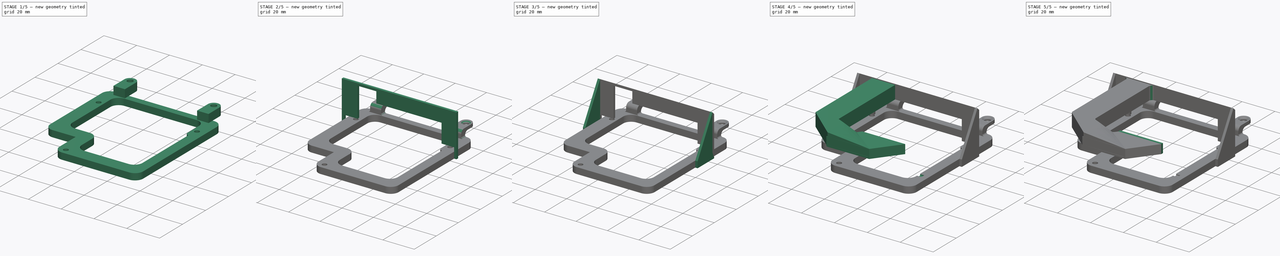
[diagram: build sequence overview — one tinted view per stage of 5, left to right]
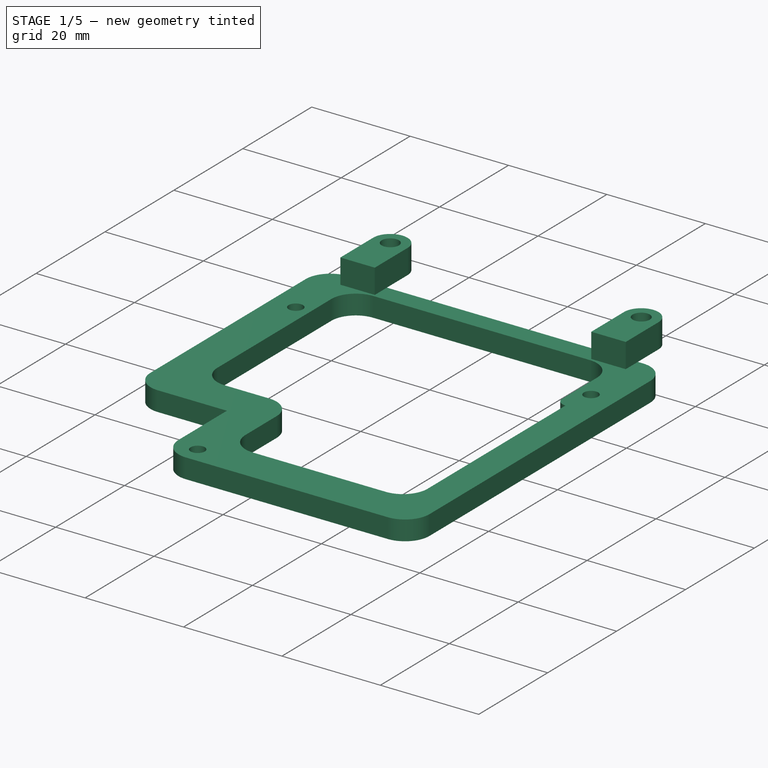
[diagram: stage 1 of 5 — iso view after this stage's code; geometry added in this stage tinted green]
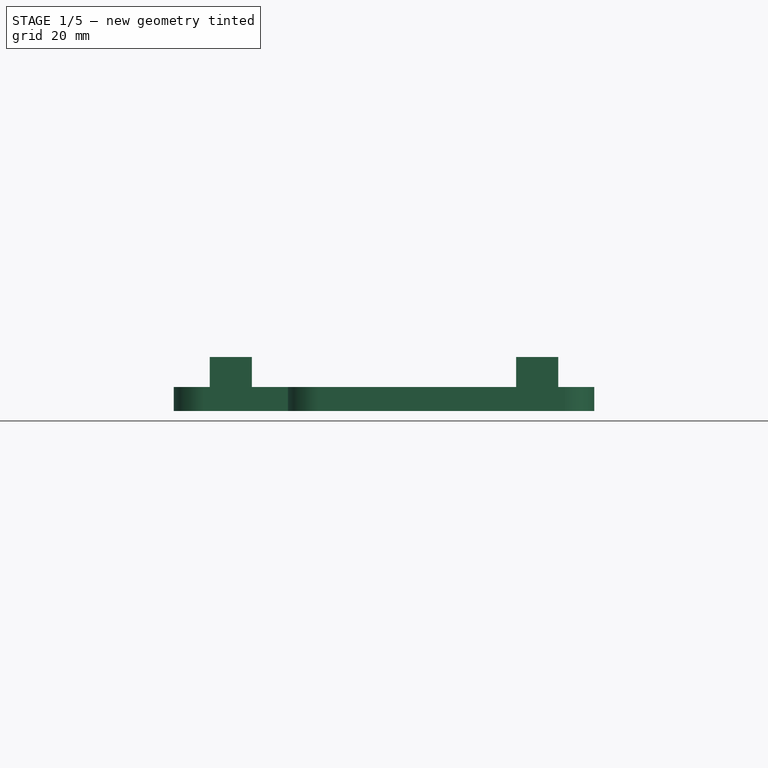
[diagram: stage 1 of 5 — front view after this stage's code; geometry added in this stage tinted green]
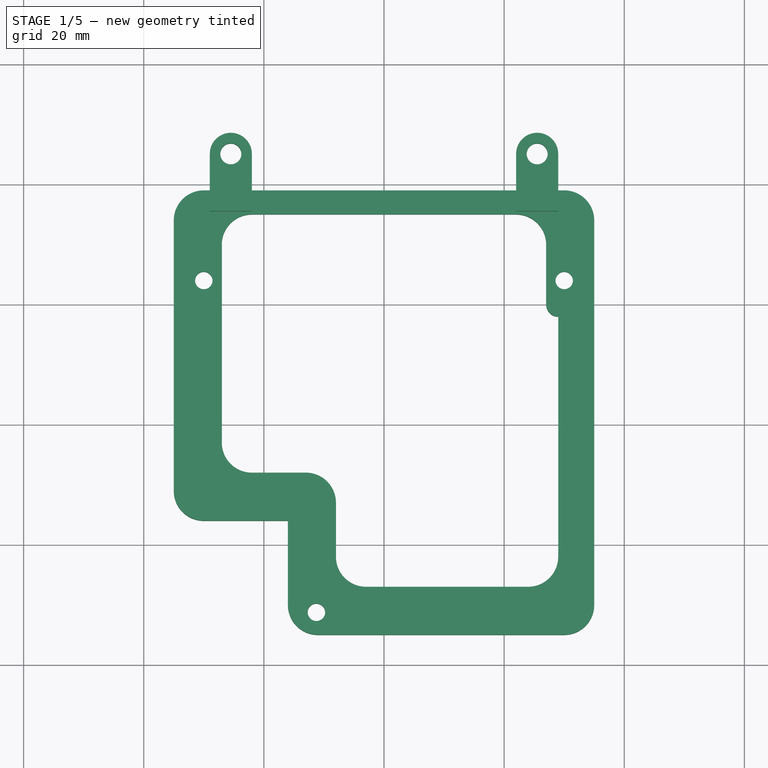
[diagram: stage 1 of 5 — top view after this stage's code; geometry added in this stage tinted green]
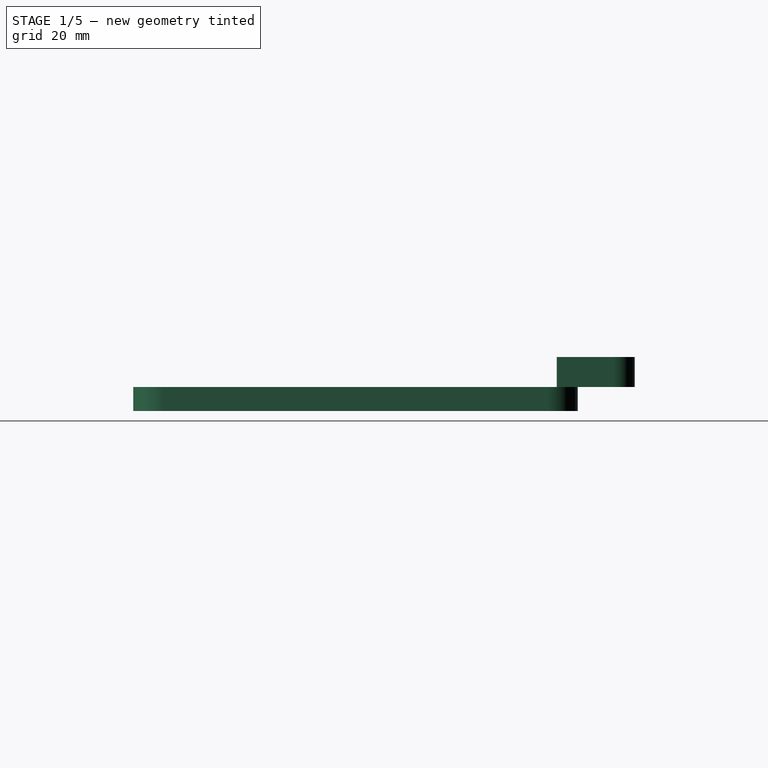
[diagram: stage 1 of 5 — right view after this stage's code; geometry added in this stage tinted green]
FCSTD DOCUMENT  (FreeCAD 0.20R29603 (Git))
Label: Encaixe (Nova PM sensor)
License: All rights reserved
LicenseURL: http://en.wikipedia.org/wiki/All_rights_reserved
objects: Sketcher::SketchObject×15, PartDesign::Pad×8, PartDesign::Fillet×6, PartDesign::Pocket×4, PartDesign::Plane×4, PartDesign::Chamfer×3, PartDesign::AdditiveLoft×1, PartDesign::Body×1
note: 64 computed .brp shape members not serialized (recipe doc carries the construction recipe); baked Part::Feature solids carry a one-line shape summary decoded from their .brp

FEATURE [Sketcher::SketchObject] Sketch
  FullyConstrained = true
  MapMode = 5
  Support = -> [XY_Plane]
  sketch-geometry (24):
    g0: LineSegment StartX=35 StartY=-35 StartZ=0 EndX=35 EndY=35 EndZ=0
    g1: LineSegment StartX=35 StartY=35 StartZ=0 EndX=-35 EndY=35 EndZ=0
    g2: LineSegment StartX=-35 StartY=35 StartZ=0 EndX=-35 EndY=-35 EndZ=0
    g3: LineSegment StartX=-35 StartY=-35 StartZ=0 EndX=35 EndY=-35 EndZ=0
    g4: GeomPoint X=0 Y=0 Z=0
    g5: LineSegment StartX=-30 StartY=24 StartZ=0 EndX=30 EndY=24 EndZ=0
    g6: Circle CenterX=-30 CenterY=24 CenterZ=0 NormalX=0 NormalY=0 NormalZ=1 AngleXU=0 Radius=1.45
    g7: Circle CenterX=30 CenterY=24 CenterZ=0 NormalX=0 NormalY=0 NormalZ=1 AngleXU=0 Radius=1.45
    g8: Circle CenterX=-11.25 CenterY=-31.25 CenterZ=0 NormalX=0 NormalY=0 NormalZ=1 AngleXU=0 Radius=1.45
    g9: GeomPoint X=0 Y=24 Z=0
    g10: LineSegment StartX=-27 StartY=35 StartZ=0 EndX=-27 EndY=-8 EndZ=0
    g11: LineSegment StartX=-27 StartY=-8 StartZ=0 EndX=-8 EndY=-8 EndZ=0
    g12: LineSegment StartX=-8 StartY=-8 StartZ=0 EndX=-8 EndY=-27 EndZ=0
    g13: LineSegment StartX=-8 StartY=-27 StartZ=0 EndX=29 EndY=-27 EndZ=0
    g14: LineSegment StartX=29 StartY=-27 StartZ=0 EndX=29 EndY=18 EndZ=0
    g15: LineSegment StartX=29 StartY=18 StartZ=0 EndX=27 EndY=18 EndZ=0
    g16: LineSegment StartX=27 StartY=18 StartZ=0 EndX=27 EndY=35 EndZ=0
    g17: LineSegment StartX=27 StartY=35 StartZ=0 EndX=-27 EndY=35 EndZ=0
    g18: LineSegment StartX=-35 StartY=39 StartZ=0 EndX=-35 EndY=-16 EndZ=0
    g19: LineSegment StartX=-35 StartY=-16 StartZ=0 EndX=-16 EndY=-16 EndZ=0
    g20: LineSegment StartX=-16 StartY=-16 StartZ=0 EndX=-16 EndY=-35 EndZ=0
    g21: LineSegment StartX=-16 StartY=-35 StartZ=0 EndX=35 EndY=-35 EndZ=0
    g22: LineSegment StartX=35 StartY=-35 StartZ=0 EndX=35 EndY=39 EndZ=0
    g23: LineSegment StartX=35 StartY=39 StartZ=0 EndX=-35 EndY=39 EndZ=0
  constraints (65):
    c: Coincident(g0,g1)
    c: Coincident(g1,g2)
    c: Coincident(g2,g3)
    c: Coincident(g3,g0)
    c: Horizontal(g1)
    c: Horizontal(g3)
    c: Vertical(g0)
    c: Vertical(g2)
    c: Symmetric(g1,g0,g4)
    c: Coincident(g4,g-1)
    c: Equal(g1,g2)
    c: DistanceX(g1,g1) = 70
    c: Horizontal(g5)
    c: DistanceX(g5,g5) = 60
    c: Coincident(g6,g5)
    c: Coincident(g7,g5)
    c: Equal(g7,g6)
    c: Diameter(g7) = 2.9
    c: DistanceY(g2,g8) = 3.75
    c: Equal(g8,g6)
    c: DistanceX(g2,g8) = 23.75
    c: PointOnObject(g9,g-2)
    c: Symmetric(g6,g7,g9)
    c: DistanceY(g7,g0) = 11
    c: Vertical(g10)
    c: Coincident(g10,g11)
    c: Horizontal(g11)
    c: Coincident(g11,g12)
    c: Vertical(g12)
    c: Coincident(g12,g13)
    c: Coincident(g14,g13)
    c: Vertical(g14)
    c: Horizontal(g13)
    c: Coincident(g14,g15)
    c: Horizontal(g15)
    c: Coincident(g15,g16)
    c: Vertical(g16)
    c: PointOnObject(g16,g1)
    c: Coincident(g16,g17)
    c: PointOnObject(g17,g1)
    c: PointOnObject(g18,g2)
    c: Vertical(g18)
    c: Coincident(g18,g19)
    c: Horizontal(g19)
    c: Coincident(g19,g20)
    c: PointOnObject(g20,g3)
    c: Vertical(g20)
    c: Coincident(g20,g21)
    c: Coincident(g21,g0)
    c: Coincident(g21,g22)
    c: Vertical(g22)
    c: Coincident(g22,g23)
    c: Horizontal(g23)
    c: DistanceX(g2,g20) = 19
    c: Equal(g19,g20)
    c: DistanceX(g18,g10) = 8
    c: Coincident(g10,g17)
    c: DistanceY(g19,g11) = 8
    c: DistanceX(g20,g12) = 8
    c: DistanceY(g21,g13) = 8
    c: DistanceX(g13,g21) = 6
    c: DistanceX(g15,g15) = 2
    c: DistanceY(g21,g14) = 53
    c: DistanceY(g0,g22) = 4
    c: Coincident(g23,g18)
FEATURE [PartDesign::Pad] Pad
  Direction = (0,0,1)
  Length = 4
  Length2 = 10
  Profile = -> Sketch
  ReferenceAxis = -> Sketch [N_Axis]
  Type = 0
FEATURE [PartDesign::Fillet] Fillet
  Base = -> Pad [Edge35]
  BaseFeature = -> Pad
  Radius = 1.99
  SupportTransform = false
  UseAllEdges = false
FEATURE [PartDesign::Fillet] Fillet001
  Base = -> Fillet [Edge44,Edge49,Edge47,Edge46,Edge43,Edge45,Edge42,Edge50,Edge24,Edge51,Edge41]
  BaseFeature = -> Fillet
  Radius = 5
  SupportTransform = false
  UseAllEdges = false
FEATURE [Sketcher::SketchObject] Sketch001
  ExternalGeometry = -> [Fillet001]
  FullyConstrained = true
  MapMode = 5
  Placement = pos=(0,0,4) rot=(0,0,1;0rad)
  Support = -> [Fillet001]
  sketch-geometry (13):
    g0: Circle CenterX=-25.5 CenterY=45 CenterZ=0 NormalX=0 NormalY=0 NormalZ=1 AngleXU=0 Radius=1.75
    g1: ArcOfCircle CenterX=-25.5 CenterY=45 CenterZ=0 NormalX=0 NormalY=0 NormalZ=1 AngleXU=0 Radius=3.5 StartAngle=-9e-16 EndAngle=3.14159
    g2: LineSegment StartX=-29 StartY=45 StartZ=0 EndX=-29 EndY=35.5 EndZ=0
    g3: LineSegment StartX=-29 StartY=35.5 StartZ=0 EndX=-22 EndY=35.5 EndZ=0
    g4: LineSegment StartX=-22 StartY=35.5 StartZ=0 EndX=-22 EndY=45 EndZ=0
    g5: LineSegment StartX=-29 StartY=45 StartZ=0 EndX=-22 EndY=45 EndZ=0
    g6: LineSegment StartX=22 StartY=45 StartZ=0 EndX=29 EndY=45 EndZ=0
    g7: LineSegment StartX=29 StartY=45 StartZ=0 EndX=29 EndY=35.5 EndZ=0
    g8: LineSegment StartX=29 StartY=35.5 StartZ=0 EndX=22 EndY=35.5 EndZ=0
    g9: LineSegment StartX=22 StartY=35.5 StartZ=0 EndX=22 EndY=45 EndZ=0
    g10: Circle CenterX=25.5 CenterY=45 CenterZ=0 NormalX=0 NormalY=0 NormalZ=1 AngleXU=0 Radius=1.75
    g11: ArcOfCircle CenterX=25.5 CenterY=45 CenterZ=0 NormalX=0 NormalY=0 NormalZ=1 AngleXU=0 Radius=3.5 StartAngle=4.7e-15 EndAngle=3.14159
    g12: LineSegment StartX=-22 StartY=35.5 StartZ=0 EndX=22 EndY=35.5 EndZ=0
  constraints (35):
    c: Coincident(g1,g0)
    c: Tangent(g1,g2) = -1.5708
    c: Coincident(g2,g3)
    c: Horizontal(g3)
    c: Coincident(g3,g4)
    c: Coincident(g4,g1)
    c: Vertical(g4)
    c: Vertical(g2)
    c: Coincident(g5,g1)
    c: Coincident(g5,g1)
    c: Horizontal(g5)
    c: DistanceX(g3,g3) = 7
    c: DistanceX(g-3,g2) = 6
    c: DistanceY(g-5,g1) = 6
    c: Coincident(g6,g7)
    c: Coincident(g7,g8)
    c: Coincident(g8,g9)
    c: Coincident(g9,g6)
    c: Horizontal(g6)
    c: Horizontal(g8)
    c: Vertical(g7)
    c: Vertical(g9)
    c: PointOnObject(g10,g6)
    c: Coincident(g11,g10)
    c: Coincident(g11,g6)
    c: Coincident(g11,g6)
    c: Equal(g8,g3)
    c: Equal(g10,g0)
    c: Diameter(g10) = 3.5
    c: DistanceX(g7,g-4) = 6
    c: DistanceY(g-5,g6) = 6
    c: Coincident(g12,g3)
    c: Coincident(g12,g8)
    c: Horizontal(g12)
    c: DistanceY(g-6,g3) = 0.5
FEATURE [PartDesign::Pad] Pad001
  BaseFeature = -> Fillet001
  Direction = (0,0,1)
  Length = 5
  Length2 = 10
  Profile = -> Sketch001
  ReferenceAxis = -> Sketch001 [N_Axis]
  Type = 0
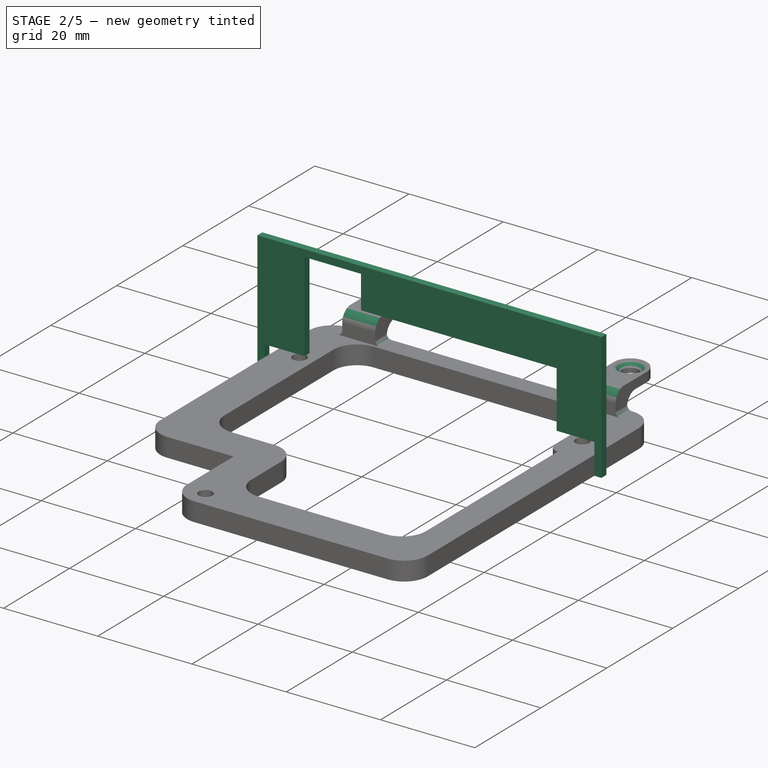
[diagram: stage 2 of 5 — iso view after this stage's code; geometry added in this stage tinted green]
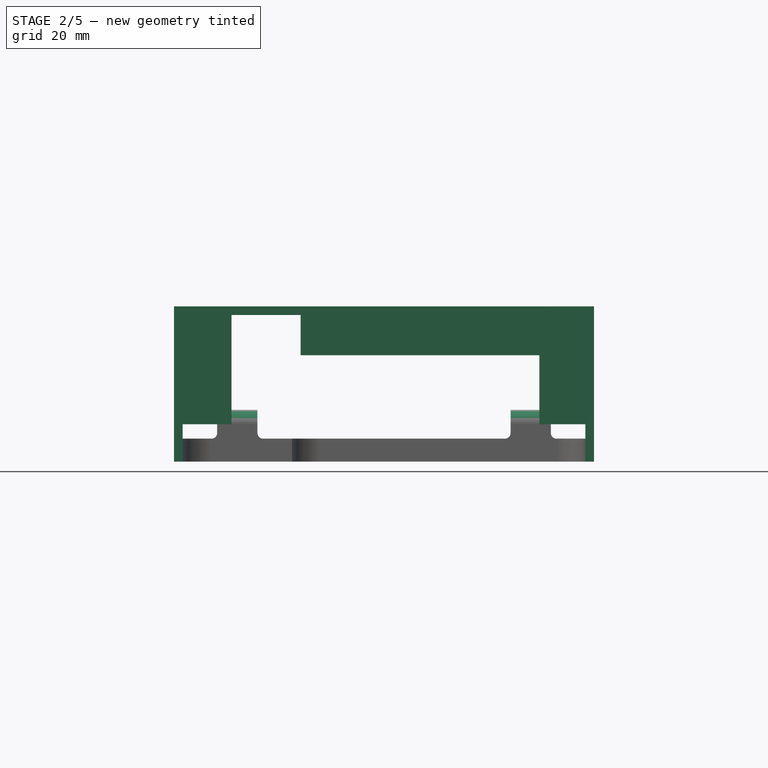
[diagram: stage 2 of 5 — front view after this stage's code; geometry added in this stage tinted green]
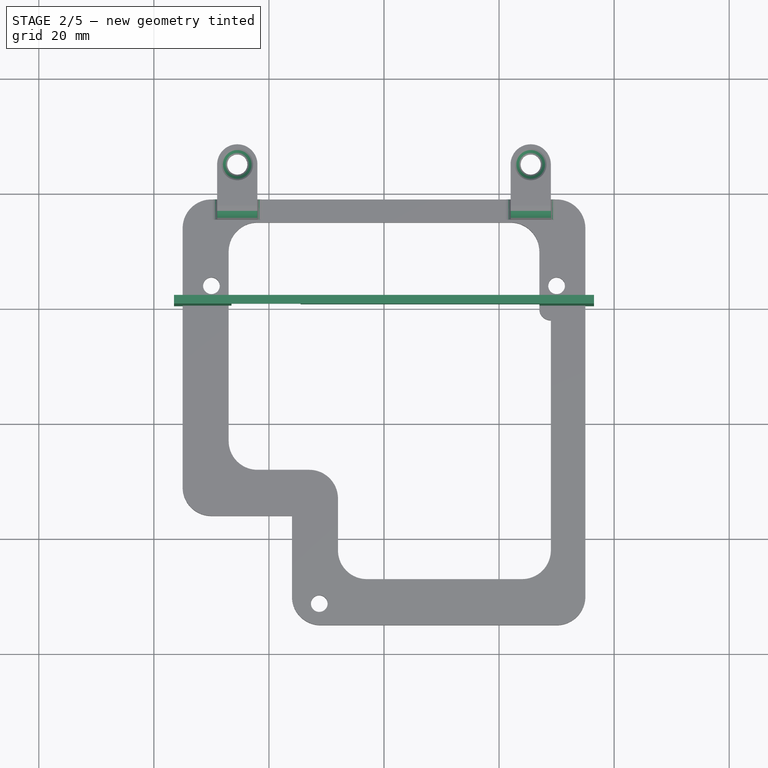
[diagram: stage 2 of 5 — top view after this stage's code; geometry added in this stage tinted green]
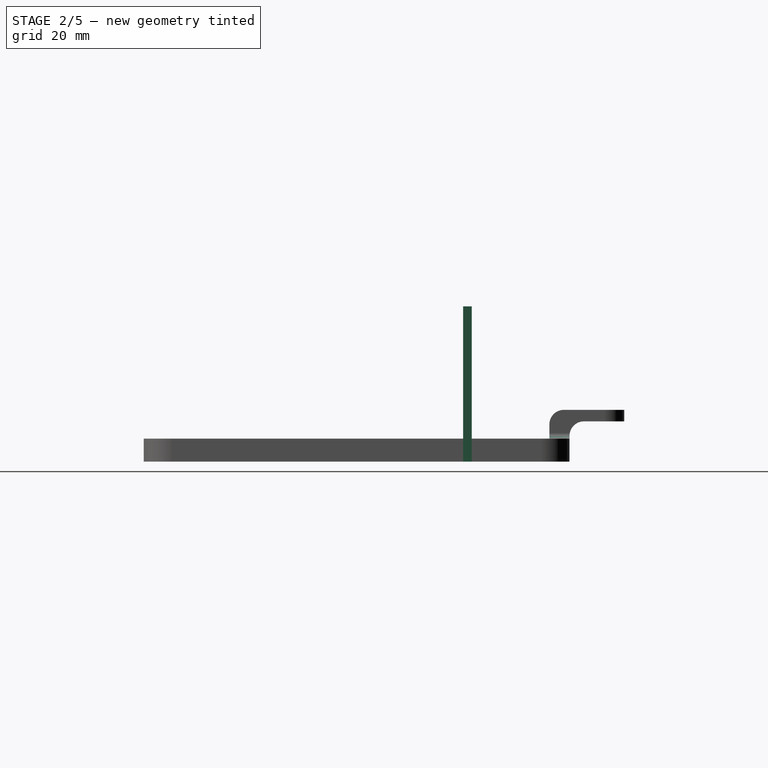
[diagram: stage 2 of 5 — right view after this stage's code; geometry added in this stage tinted green]
FEATURE [Sketcher::SketchObject] Sketch002
  ExternalGeometry = -> [Pad001]
  FullyConstrained = true
  MapMode = 5
  Placement = pos=(22,0,0) rot=(0.57735,-0.57735,-0.57735;2.0944rad)
  Support = -> [Pad001]
  sketch-geometry (4):
    g0: LineSegment StartX=-39 StartY=4 StartZ=0 EndX=-49 EndY=4 EndZ=0
    g1: LineSegment StartX=-49 StartY=4 StartZ=0 EndX=-49 EndY=7 EndZ=0
    g2: LineSegment StartX=-49 StartY=7 StartZ=0 EndX=-39 EndY=7 EndZ=0
    g3: LineSegment StartX=-39 StartY=7 StartZ=0 EndX=-39 EndY=4 EndZ=0
  constraints (11):
    c: Coincident(g0,g1)
    c: Coincident(g1,g2)
    c: Coincident(g2,g3)
    c: Coincident(g3,g0)
    c: Horizontal(g0)
    c: Horizontal(g2)
    c: Vertical(g1)
    c: Vertical(g3)
    c: Coincident(g0,g-5)
    c: DistanceX(g0,g0) = 10
    c: DistanceY(g3,g3) = 3
FEATURE [PartDesign::Pocket] Pocket
  BaseFeature = -> Pad001
  Direction = (1,0,0)
  Length = 10
  Length2 = 60
  Profile = -> Sketch002
  ReferenceAxis = -> Sketch002 [N_Axis]
  Type = 4
FEATURE [PartDesign::Fillet] Fillet002
  Base = -> Pocket [Edge100,Edge118,Edge109,Edge103]
  BaseFeature = -> Pocket
  Radius = 2.5
  SupportTransform = false
  UseAllEdges = false
FEATURE [PartDesign::Fillet] Fillet003
  Base = -> Fillet002 [Edge28,Edge6,Edge24,Edge30]
  BaseFeature = -> Fillet002
  Radius = 1
  SupportTransform = false
  UseAllEdges = false
FEATURE [PartDesign::Chamfer] Chamfer
  Angle = 45
  Base = -> Fillet003 [Edge38,Edge157]
  BaseFeature = -> Fillet003
  ChamferType = 0
  FlipDirection = false
  Size = 1
  Size2 = 1
  SupportTransform = false
  UseAllEdges = false
FEATURE [Sketcher::SketchObject] Sketch003
  AttachmentOffset = pos=(0,0,-18.5) rot=(0,0,1;0rad)
  ExternalGeometry = -> [Chamfer]
  FullyConstrained = true
  MapMode = 5
  Placement = pos=(0,20.5,4.1e-15) rot=(0,0.707107,0.707107;3.14159rad)
  Support = -> [Chamfer]
  sketch-geometry (14):
    g0: LineSegment StartX=-36.5 StartY=0 StartZ=0 EndX=-35 EndY=0 EndZ=0
    g1: LineSegment StartX=-35 StartY=0 StartZ=0 EndX=-35 EndY=6.5 EndZ=0
    g2: LineSegment StartX=-35 StartY=6.5 StartZ=0 EndX=-27 EndY=6.5 EndZ=0
    g3: LineSegment StartX=-27 StartY=6.5 StartZ=0 EndX=-27 EndY=18.5 EndZ=0
    g4: LineSegment StartX=-27 StartY=18.5 StartZ=0 EndX=14.5 EndY=18.5 EndZ=0
    g5: LineSegment StartX=14.5 StartY=18.5 StartZ=0 EndX=14.5 EndY=25.5 EndZ=0
    g6: LineSegment StartX=14.5 StartY=25.5 StartZ=0 EndX=26.5 EndY=25.5 EndZ=0
    g7: LineSegment StartX=26.5 StartY=25.5 StartZ=0 EndX=26.5 EndY=6.5 EndZ=0
    g8: LineSegment StartX=26.5 StartY=6.5 StartZ=0 EndX=35 EndY=6.5 EndZ=0
    g9: LineSegment StartX=35 StartY=6.5 StartZ=0 EndX=35 EndY=-9e-16 EndZ=0
    g10: LineSegment StartX=35 StartY=-9e-16 StartZ=0 EndX=36.5 EndY=-9e-16 EndZ=0
    g11: LineSegment StartX=36.5 StartY=-9e-16 StartZ=0 EndX=36.5 EndY=27 EndZ=0
    g12: LineSegment StartX=36.5 StartY=27 StartZ=0 EndX=-36.5 EndY=27 EndZ=0
    g13: LineSegment StartX=-36.5 StartY=27 StartZ=0 EndX=-36.5 EndY=0 EndZ=0
  constraints (40):
    c: Horizontal(g0)
    c: Coincident(g0,g1)
    c: Coincident(g1,g2)
    c: Horizontal(g2)
    c: Coincident(g2,g3)
    c: Coincident(g3,g4)
    c: Horizontal(g4)
    c: Coincident(g4,g5)
    c: Vertical(g5)
    c: Coincident(g5,g6)
    c: Horizontal(g6)
    c: Coincident(g6,g7)
    c: Vertical(g7)
    c: Coincident(g7,g8)
    c: Horizontal(g8)
    c: Coincident(g8,g9)
    c: Vertical(g9)
    c: Coincident(g9,g10)
    c: Coincident(g10,g11)
    c: Vertical(g11)
    c: Coincident(g11,g12)
    c: Horizontal(g12)
    c: Coincident(g12,g13)
    c: Coincident(g13,g0)
    c: Vertical(g3)
    c: Vertical(g1)
    c: Vertical(g13)
    c: Horizontal(g10)
    c: Equal(g10,g0)
    c: DistanceX(g12,g12) = 73
    c: DistanceX(g6,g6) = 12
    c: DistanceY(g5,g5) = 7
    c: DistanceX(g4,g4) = 41.5
    c: DistanceY(g13,g13) = 27
    c: Equal(g9,g1)
    c: DistanceY(g3,g3) = 12
    c: DistanceX(g2,g2) = 8
    c: Coincident(g9,g-4)
    c: Coincident(g0,g-3)
    c: DistanceY(g-4,g8) = 2.5
FEATURE [PartDesign::Pad] Pad002
  BaseFeature = -> Chamfer
  Direction = (0,1,-2e-16)
  Length = 1.5
  Length2 = 10
  Profile = -> Sketch003
  ReferenceAxis = -> Sketch003 [N_Axis]
  Refine = true
  Type = 0
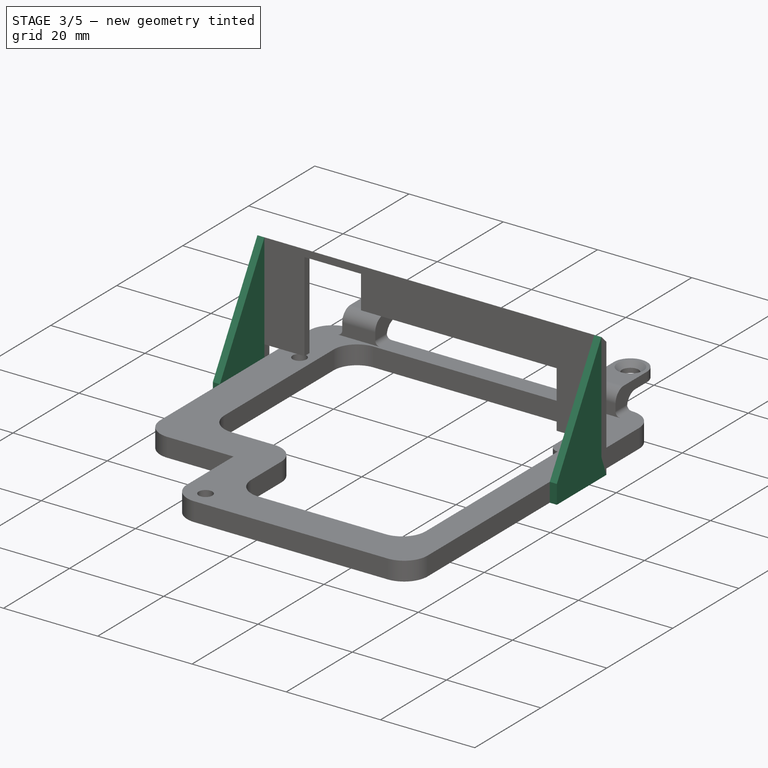
[diagram: stage 3 of 5 — iso view after this stage's code; geometry added in this stage tinted green]
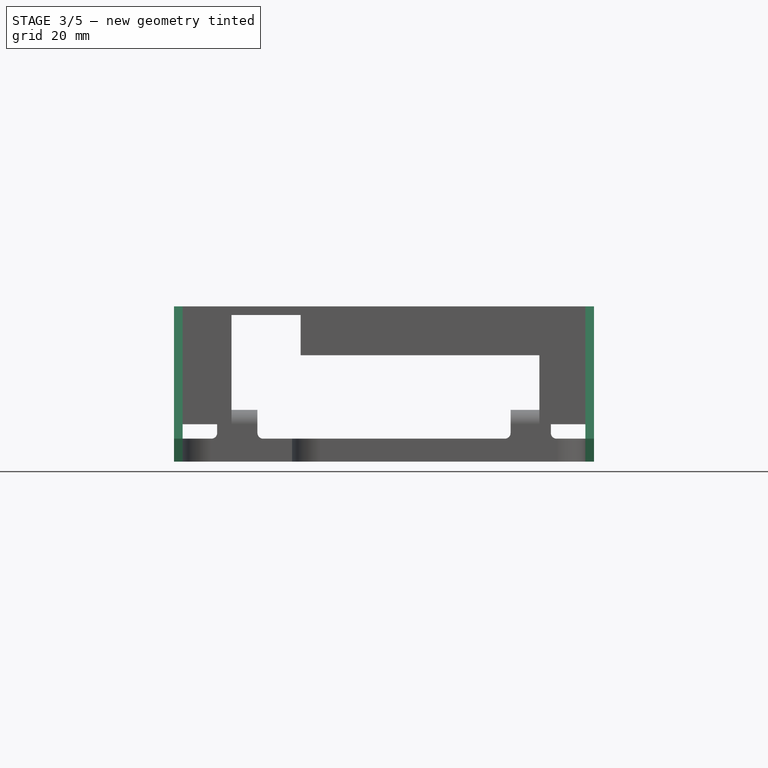
[diagram: stage 3 of 5 — front view after this stage's code; geometry added in this stage tinted green]
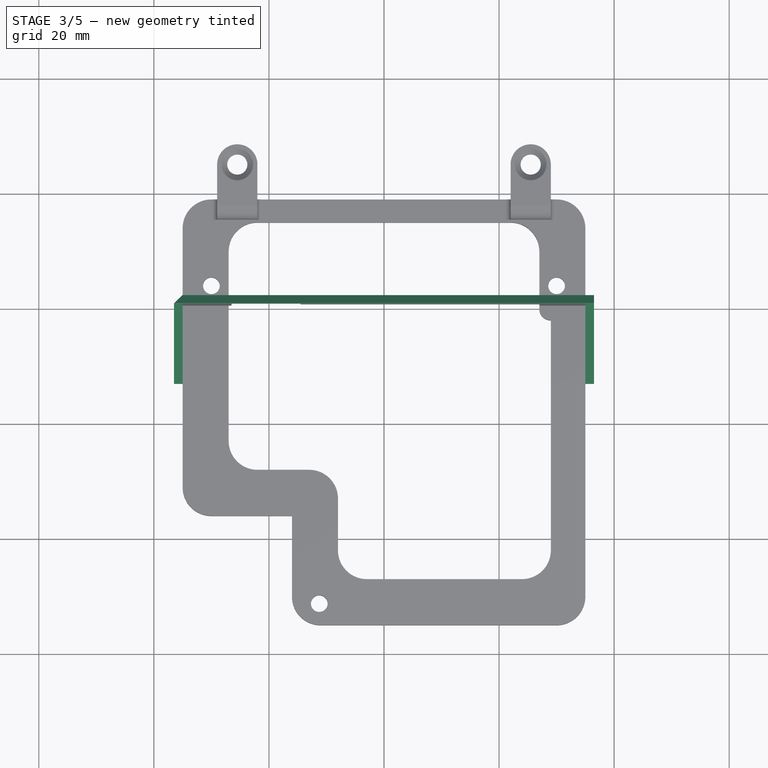
[diagram: stage 3 of 5 — top view after this stage's code; geometry added in this stage tinted green]
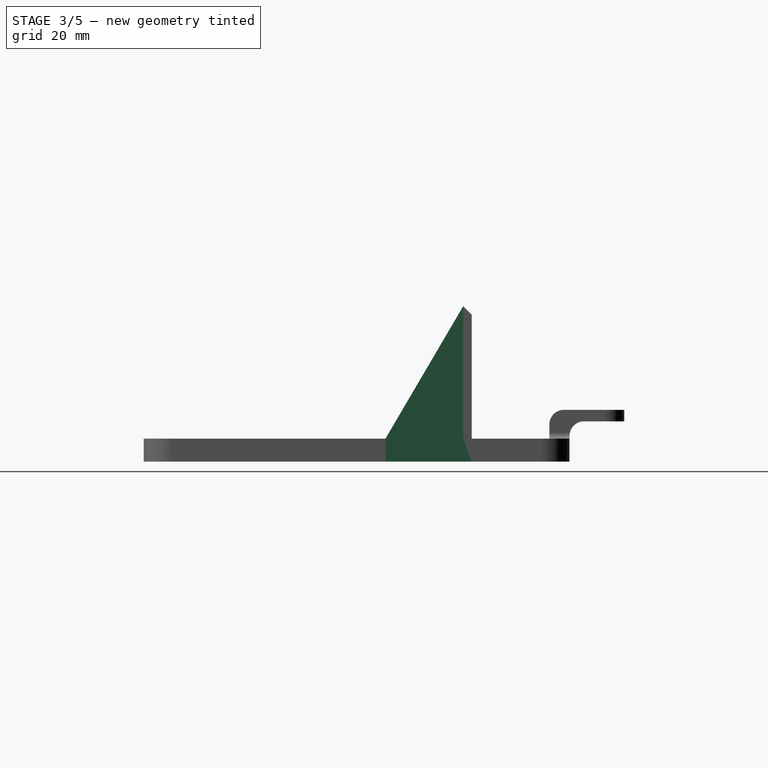
[diagram: stage 3 of 5 — right view after this stage's code; geometry added in this stage tinted green]
FEATURE [Sketcher::SketchObject] Sketch004
  ExternalGeometry = -> [Pad002]
  FullyConstrained = true
  MapMode = 5
  Placement = pos=(1e-16,22,-6.5e-15) rot=(0,0.707107,0.707107;3.14159rad)
  Support = -> [Pad002]
  sketch-geometry (8):
    g0: LineSegment StartX=-35 StartY=4 StartZ=0 EndX=-36.5 EndY=4 EndZ=0
    g1: LineSegment StartX=-36.5 StartY=4 StartZ=0 EndX=-36.5 EndY=0 EndZ=0
    g2: LineSegment StartX=-36.5 StartY=0 StartZ=0 EndX=-35 EndY=0 EndZ=0
    g3: LineSegment StartX=-35 StartY=0 StartZ=0 EndX=-35 EndY=4 EndZ=0
    g4: LineSegment StartX=35 StartY=4 StartZ=0 EndX=36.5 EndY=4 EndZ=0
    g5: LineSegment StartX=36.5 StartY=4 StartZ=0 EndX=36.5 EndY=0 EndZ=0
    g6: LineSegment StartX=36.5 StartY=0 StartZ=0 EndX=35 EndY=0 EndZ=0
    g7: LineSegment StartX=35 StartY=0 StartZ=0 EndX=35 EndY=4 EndZ=0
  constraints (20):
    c: Coincident(g0,g1)
    c: Coincident(g1,g2)
    c: Coincident(g2,g3)
    c: Coincident(g3,g0)
    c: Horizontal(g0)
    c: Horizontal(g2)
    c: Vertical(g1)
    c: Vertical(g3)
    c: Coincident(g0,g-5)
    c: Coincident(g1,g-6)
    c: Coincident(g4,g5)
    c: Coincident(g5,g6)
    c: Coincident(g6,g7)
    c: Coincident(g7,g4)
    c: Horizontal(g4)
    c: Horizontal(g6)
    c: Vertical(g5)
    c: Vertical(g7)
    c: Coincident(g4,g-3)
    c: Coincident(g5,g-4)
FEATURE [PartDesign::Pad] Pad003
  BaseFeature = -> Pad002
  Direction = (0,1,-2e-16)
  Length = 15
  Length2 = 10
  Profile = -> Sketch004
  ReferenceAxis = -> Sketch004 [N_Axis]
  Refine = true
  Reversed = true
  Type = 0
FEATURE [Sketcher::SketchObject] Sketch005
  ExternalGeometry = -> [Pad003]
  FullyConstrained = true
  MapMode = 5
  Placement = pos=(-36.5,0,0) rot=(0.57735,-0.57735,-0.57735;2.0944rad)
  Support = -> [Pad003]
  sketch-geometry (3):
    g0: LineSegment StartX=-20.5 StartY=27 StartZ=0 EndX=-7 EndY=4 EndZ=0
    g1: LineSegment StartX=-7 StartY=4 StartZ=0 EndX=-20.5 EndY=4 EndZ=0
    g2: LineSegment StartX=-20.5 StartY=4 StartZ=0 EndX=-20.5 EndY=27 EndZ=0
  constraints (6):
    c: Coincident(g-3,g0)
    c: Coincident(g0,g-4)
    c: Coincident(g0,g1)
    c: Coincident(g1,g-4)
    c: Coincident(g1,g2)
    c: Coincident(g2,g0)
FEATURE [PartDesign::Pad] Pad004
  BaseFeature = -> Pad003
  Direction = (-1,0,0)
  Length = 10
  Length2 = 10
  Profile = -> Sketch005
  ReferenceAxis = -> Sketch005 [N_Axis]
  Type = 3
  UpToFace = -> Pad003 [Face73]
FEATURE [Sketcher::SketchObject] Sketch006
  ExternalGeometry = -> [Pad004]
  FullyConstrained = true
  MapMode = 5
  Placement = pos=(0,6e-15,27) rot=(0,0,1;0rad)
  Support = -> [Pad004]
  sketch-geometry (4):
    g0: LineSegment StartX=-35 StartY=7 StartZ=0 EndX=35 EndY=7 EndZ=0
    g1: LineSegment StartX=35 StartY=7 StartZ=0 EndX=35 EndY=20.5 EndZ=0
    g2: LineSegment StartX=35 StartY=20.5 StartZ=0 EndX=-35 EndY=20.5 EndZ=0
    g3: LineSegment StartX=-35 StartY=20.5 StartZ=0 EndX=-35 EndY=7 EndZ=0
  constraints (10):
    c: Coincident(g0,g1)
    c: Coincident(g1,g2)
    c: Coincident(g2,g3)
    c: Coincident(g3,g0)
    c: Horizontal(g2)
    c: Vertical(g1)
    c: Vertical(g3)
    c: Coincident(g0,g-3)
    c: PointOnObject(g1,g-5)
    c: Coincident(g0,g-4)
FEATURE [PartDesign::Pocket] Pocket001
  BaseFeature = -> Pad004
  Direction = (0,-2e-16,-1)
  Length = 0
  Length2 = 5
  Profile = -> Sketch006
  ReferenceAxis = -> Sketch006 [N_Axis]
  Refine = true
  Type = 3
  UpToFace = -> Pad004 [Face72]
FEATURE [PartDesign::Chamfer] Chamfer001
  Angle = 45
  Base = -> Pocket001 [Edge150,Edge149]
  BaseFeature = -> Pocket001
  ChamferType = 0
  FlipDirection = false
  Size = 1.45
  Size2 = 1
  SupportTransform = false
  UseAllEdges = false
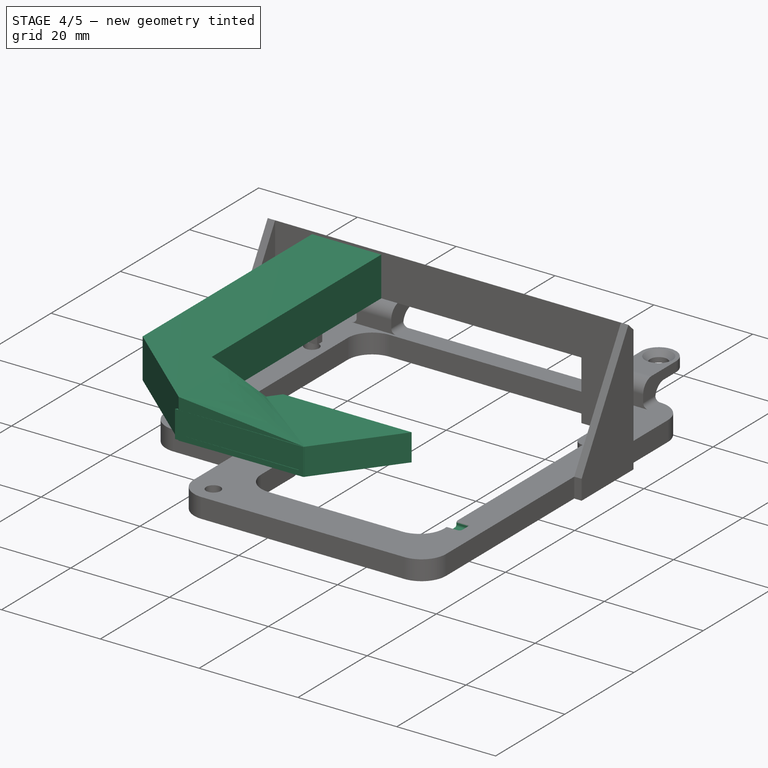
[diagram: stage 4 of 5 — iso view after this stage's code; geometry added in this stage tinted green]
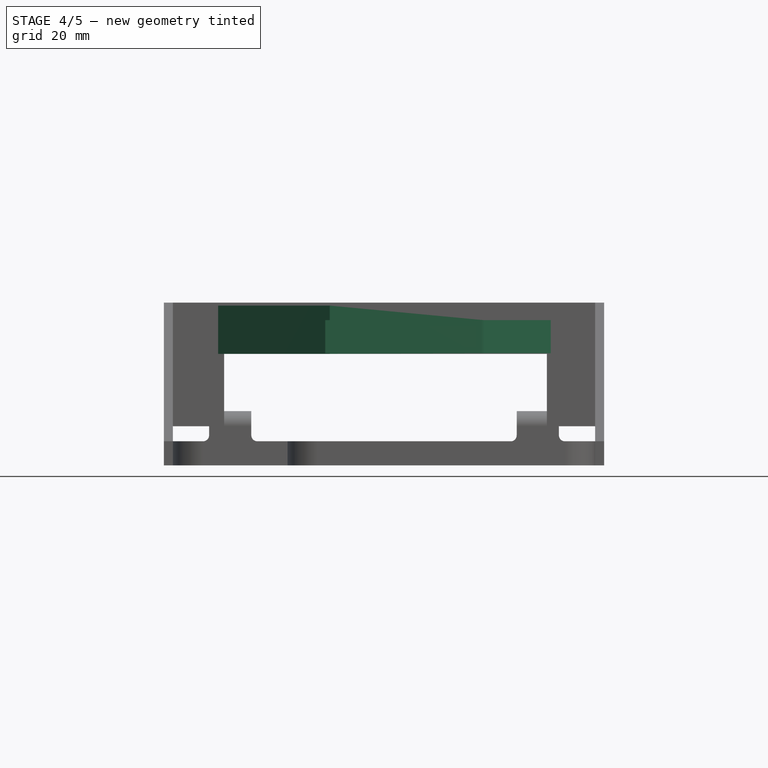
[diagram: stage 4 of 5 — front view after this stage's code; geometry added in this stage tinted green]
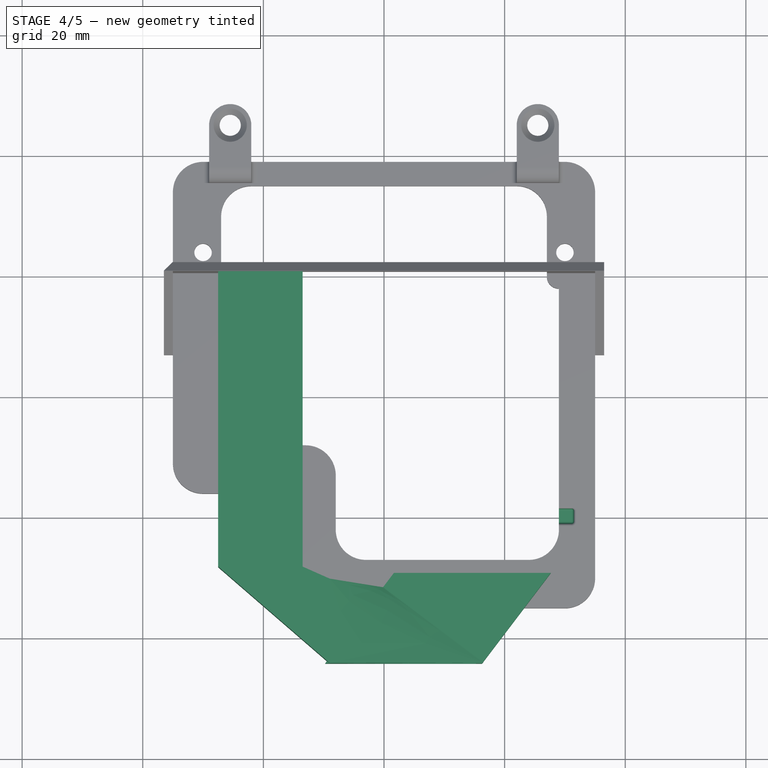
[diagram: stage 4 of 5 — top view after this stage's code; geometry added in this stage tinted green]
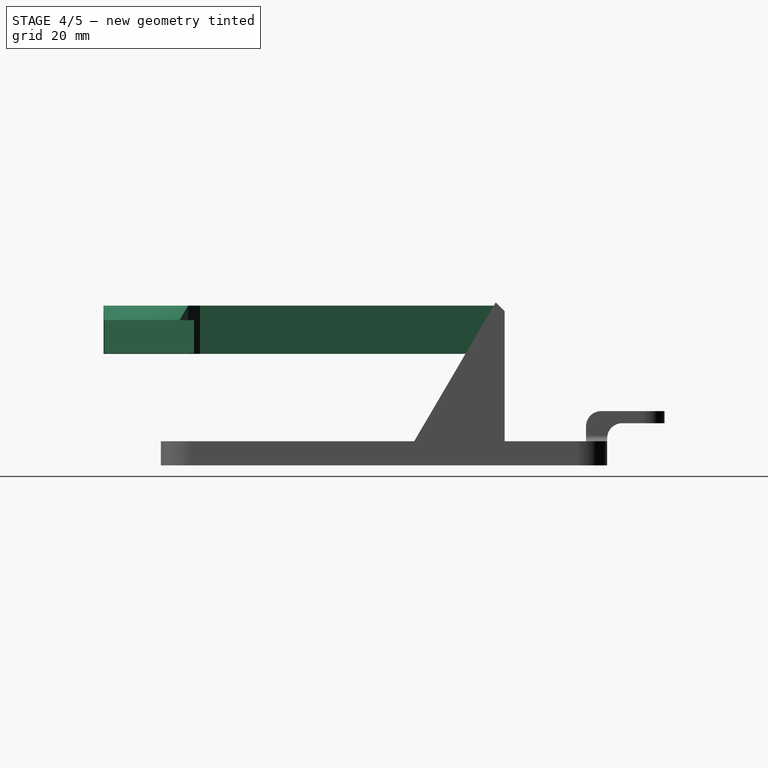
[diagram: stage 4 of 5 — right view after this stage's code; geometry added in this stage tinted green]
FEATURE [Sketcher::SketchObject] Sketch007
  ExternalGeometry = -> [Chamfer001]
  FullyConstrained = true
  MapMode = 5
  Placement = pos=(0,0,4) rot=(0,0,1;0rad)
  Support = -> [Chamfer001]
  sketch-geometry (4):
    g0: LineSegment StartX=29 StartY=-18.5 StartZ=0 EndX=31.5 EndY=-18.5 EndZ=0
    g1: LineSegment StartX=31.5 StartY=-18.5 StartZ=0 EndX=31.5 EndY=-21 EndZ=0
    g2: LineSegment StartX=31.5 StartY=-21 StartZ=0 EndX=29 EndY=-21 EndZ=0
    g3: LineSegment StartX=29 StartY=-21 StartZ=0 EndX=29 EndY=-18.5 EndZ=0
  constraints (12):
    c: Coincident(g0,g1)
    c: Coincident(g1,g2)
    c: Coincident(g2,g3)
    c: Coincident(g3,g0)
    c: Horizontal(g0)
    c: Horizontal(g2)
    c: Vertical(g1)
    c: Vertical(g3)
    c: Equal(g1,g0)
    c: DistanceX(g0,g0) = 2.5
    c: DistanceY(g-4,g2) = 6
    c: PointOnObject(g2,g-3)
FEATURE [PartDesign::Pocket] Pocket002
  BaseFeature = -> Chamfer001
  Direction = (0,0,-1)
  Length = 1
  Length2 = 5
  Profile = -> Sketch007
  ReferenceAxis = -> Sketch007 [N_Axis]
  Type = 0
FEATURE [PartDesign::Fillet] Fillet004
  Base = -> Pocket002 [Edge222,Edge173,Edge172,Edge171,Edge224,Edge225,Edge221,Edge223]
  BaseFeature = -> Pocket002
  Radius = 0.4
  SupportTransform = false
  UseAllEdges = false
FEATURE [Sketcher::SketchObject] Sketch008
  ExternalGeometry = -> [Fillet004]
  FullyConstrained = true
  MapMode = 5
  Placement = pos=(0,20.5,-4.6e-15) rot=(1,0,0;1.5708rad)
  Support = -> [Fillet004]
  sketch-geometry (8):
    g0: LineSegment StartX=-13.5 StartY=18.5 StartZ=0 EndX=-27.5 EndY=18.5 EndZ=0
    g1: LineSegment StartX=-27.5 StartY=18.5 StartZ=0 EndX=-27.5 EndY=26.5 EndZ=0
    g2: LineSegment StartX=-27.5 StartY=26.5 StartZ=0 EndX=-13.5 EndY=26.5 EndZ=0
    g3: LineSegment StartX=-13.5 StartY=26.5 StartZ=0 EndX=-13.5 EndY=18.5 EndZ=0
    g4: LineSegment StartX=-26.5 StartY=25.5 StartZ=0 EndX=-14.5 EndY=25.5 EndZ=0
    g5: LineSegment StartX=-14.5 StartY=25.5 StartZ=0 EndX=-14.5 EndY=19.5 EndZ=0
    g6: LineSegment StartX=-14.5 StartY=19.5 StartZ=0 EndX=-26.5 EndY=19.5 EndZ=0
    g7: LineSegment StartX=-26.5 StartY=19.5 StartZ=0 EndX=-26.5 EndY=25.5 EndZ=0
  constraints (22):
    c: Coincident(g0,g1)
    c: Coincident(g1,g2)
    c: Coincident(g2,g3)
    c: Coincident(g3,g0)
    c: Horizontal(g0)
    c: Horizontal(g2)
    c: Vertical(g1)
    c: Vertical(g3)
    c: PointOnObject(g0,g-3)
    c: DistanceX(g-3,g0) = 1
    c: DistanceY(g-4,g1) = 1
    c: DistanceX(g1,g-4) = 1
    c: Coincident(g4,g5)
    c: Coincident(g5,g6)
    c: Coincident(g6,g7)
    c: Coincident(g7,g4)
    c: Horizontal(g6)
    c: Vertical(g5)
    c: Vertical(g7)
    c: Coincident(g4,g-4)
    c: Coincident(g4,g-4)
    c: DistanceY(g-3,g5) = 1
FEATURE [PartDesign::Plane] DatumPlane
  AttachmentOffset = pos=(0,0,49) rot=(0,0,1;0rad)
  Length = 60
  MapMode = 5
  Placement = pos=(0,-28.5,6.3e-15) rot=(1,0,0;1.5708rad)
  ResizeMode = 0
  Support = -> [Fillet004]
  Width = 60
FEATURE [Sketcher::SketchObject] Sketch009
  ExternalGeometry = -> [Sketch008]
  FullyConstrained = true
  MapMode = 5
  Placement = pos=(0,-28.5,6.3e-15) rot=(1,0,0;1.5708rad)
  Support = -> [DatumPlane]
  sketch-geometry (8):
    g0: LineSegment StartX=-27.5 StartY=26.5 StartZ=0 EndX=-13.5 EndY=26.5 EndZ=0
    g1: LineSegment StartX=-13.5 StartY=26.5 StartZ=0 EndX=-13.5 EndY=18.5 EndZ=0
    g2: LineSegment StartX=-13.5 StartY=18.5 StartZ=0 EndX=-27.5 EndY=18.5 EndZ=0
    g3: LineSegment StartX=-27.5 StartY=18.5 StartZ=0 EndX=-27.5 EndY=26.5 EndZ=0
    g4: LineSegment StartX=-26.5 StartY=25.5 StartZ=0 EndX=-14.5 EndY=25.5 EndZ=0
    g5: LineSegment StartX=-14.5 StartY=25.5 StartZ=0 EndX=-14.5 EndY=19.5 EndZ=0
    g6: LineSegment StartX=-14.5 StartY=19.5 StartZ=0 EndX=-26.5 EndY=19.5 EndZ=0
    g7: LineSegment StartX=-26.5 StartY=19.5 StartZ=0 EndX=-26.5 EndY=25.5 EndZ=0
  constraints (20):
    c: Coincident(g0,g1)
    c: Coincident(g1,g2)
    c: Coincident(g2,g3)
    c: Coincident(g3,g0)
    c: Horizontal(g0)
    c: Vertical(g1)
    c: Vertical(g3)
    c: Horizontal(g2)
    c: Coincident(g0,g-4)
    c: Coincident(g2,g-3)
    c: Coincident(g4,g5)
    c: Coincident(g5,g6)
    c: Coincident(g6,g7)
    c: Coincident(g7,g4)
    c: Horizontal(g4)
    c: Horizontal(g6)
    c: Vertical(g5)
    c: Vertical(g7)
    c: Coincident(g4,g-6)
    c: Coincident(g5,g-5)
FEATURE [PartDesign::Plane] DatumPlane001
  AttachmentOffset = pos=(4.5,0,0) rot=(0,1,0;1.5708rad)
  Length = 61.9981
  MapMode = 7
  Placement = pos=(-9,-28.5,26.5) rot=(0,1,0;1.5708rad)
  ResizeMode = 0
  Support = -> [Sketch009]
  Width = 63.9981
FEATURE [Sketcher::SketchObject] Sketch010
  AttachmentOffset = pos=(0,-2,0) rot=(0,0,1;0rad)
  ExternalGeometry = -> [Sketch009]
  FullyConstrained = true
  MapMode = 5
  Placement = pos=(-9,-30.5,26.5) rot=(0,1,0;1.5708rad)
  Support = -> [DatumPlane001]
  sketch-geometry (8):
    g0: LineSegment StartX=0 StartY=0 StartZ=0 EndX=8 EndY=0 EndZ=0
    g1: LineSegment StartX=8 StartY=0 StartZ=0 EndX=8 EndY=-14 EndZ=0
    g2: LineSegment StartX=8 StartY=-14 StartZ=0 EndX=0 EndY=-14 EndZ=0
    g3: LineSegment StartX=0 StartY=-14 StartZ=0 EndX=0 EndY=0 EndZ=0
    g4: LineSegment StartX=1 StartY=-13 StartZ=0 EndX=7 EndY=-13 EndZ=0
    g5: LineSegment StartX=7 StartY=-13 StartZ=0 EndX=7 EndY=-1 EndZ=0
    g6: LineSegment StartX=7 StartY=-1 StartZ=0 EndX=1 EndY=-1 EndZ=0
    g7: LineSegment StartX=1 StartY=-1 StartZ=0 EndX=1 EndY=-13 EndZ=0
  constraints (24):
    c: Coincident(g0,g1)
    c: Coincident(g1,g2)
    c: Coincident(g2,g3)
    c: Coincident(g3,g0)
    c: Horizontal(g0)
    c: Horizontal(g2)
    c: Vertical(g1)
    c: Vertical(g3)
    c: Coincident(g4,g5)
    c: Coincident(g5,g6)
    c: Coincident(g6,g7)
    c: Coincident(g7,g4)
    c: Horizontal(g4)
    c: Horizontal(g6)
    c: Vertical(g5)
    c: Vertical(g7)
    c: PointOnObject(g0,g-2)
    c: DistanceY(g0,g-3) = 2
    c: PointOnObject(g-3,g1)
    c: DistanceX(g0,g4) = 1
    c: DistanceX(g4,g0) = 1
    c: DistanceY(g6,g0) = 1
    c: DistanceY(g2,g4) = 1
    c: DistanceY(g7,g7) = 12
FEATURE [PartDesign::Plane] DatumPlane002
  AttachmentOffset = pos=(0,0,-5.5) rot=(0,0,1;0rad)
  Length = 60
  MapMode = 5
  Placement = pos=(0,-29.5,-1.2e-15) rot=(1,0,0;1.5708rad)
  ResizeMode = 0
  Support = -> [Fillet004]
  Width = 60
FEATURE [Sketcher::SketchObject] Sketch011
  ExternalGeometry = -> [Fillet004]
  FullyConstrained = true
  MapMode = 5
  Placement = pos=(0,-29.5,-1.2e-15) rot=(1,0,0;1.5708rad)
  Support = -> [DatumPlane002]
  sketch-geometry (8):
    g0: LineSegment StartX=2.65 StartY=23.1 StartZ=0 EndX=26.65 EndY=23.1 EndZ=0
    g1: LineSegment StartX=26.65 StartY=23.1 StartZ=0 EndX=26.65 EndY=19.6 EndZ=0
    g2: LineSegment StartX=26.65 StartY=19.6 StartZ=0 EndX=2.65 EndY=19.6 EndZ=0
    g3: LineSegment StartX=2.65 StartY=19.6 StartZ=0 EndX=2.65 EndY=23.1 EndZ=0
    g4: LineSegment StartX=27.65 StartY=24.1 StartZ=0 EndX=1.65 EndY=24.1 EndZ=0
    g5: LineSegment StartX=1.65 StartY=24.1 StartZ=0 EndX=1.65 EndY=18.6 EndZ=0
    g6: LineSegment StartX=1.65 StartY=18.6 StartZ=0 EndX=27.65 EndY=18.6 EndZ=0
    g7: LineSegment StartX=27.65 StartY=18.6 StartZ=0 EndX=27.65 EndY=24.1 EndZ=0
  constraints (24):
    c: Coincident(g0,g1)
    c: Coincident(g1,g2)
    c: Coincident(g2,g3)
    c: Coincident(g3,g0)
    c: Horizontal(g0)
    c: Horizontal(g2)
    c: Vertical(g1)
    c: Vertical(g3)
    c: Coincident(g4,g5)
    c: Coincident(g5,g6)
    c: Coincident(g6,g7)
    c: Coincident(g7,g4)
    c: Horizontal(g4)
    c: Horizontal(g6)
    c: Vertical(g5)
    c: Vertical(g7)
    c: DistanceY(g5,g5) = 5.5
    c: DistanceY(g-3,g5) = 14.6
    c: DistanceY(g5,g1) = 1
    c: DistanceY(g0,g4) = 1
    c: DistanceX(g4,g4) = 26
    c: DistanceX(g6,g-4) = 7.35
    c: DistanceX(g4,g0) = 1
    c: DistanceX(g1,g6) = 1
FEATURE [PartDesign::Plane] DatumPlane003
  AttachmentOffset = pos=(0,0,-3) rot=(0,-1,0;0.645772rad)
  Length = 81.8566
  MapMode = 5
  Placement = pos=(0,-32,-7e-16) rot=(0.903911,-0.302444,-0.302444;1.67165rad)
  ResizeMode = 0
  Support = -> [Fillet004]
  Width = 61.8341
FEATURE [Sketcher::SketchObject] Sketch012
  ExternalGeometry = -> [Sketch011]
  FullyConstrained = true
  MapMode = 5
  Placement = pos=(1.8e-15,-32,-7e-16) rot=(0.903911,-0.302444,-0.302444;1.67165rad)
  Support = -> [DatumPlane003]
  sketch-geometry (8):
    g0: LineSegment StartX=-0.186789 StartY=24.1 StartZ=0 EndX=20.5777 EndY=24.1 EndZ=0
    g1: LineSegment StartX=20.5777 StartY=24.1 StartZ=0 EndX=20.5777 EndY=18.6 EndZ=0
    g2: LineSegment StartX=20.5777 StartY=18.6 StartZ=0 EndX=-0.186789 EndY=18.6 EndZ=0
    g3: LineSegment StartX=-0.186789 StartY=18.6 StartZ=0 EndX=-0.186789 EndY=24.1 EndZ=0
    g4: LineSegment StartX=0.611847 StartY=23.1 StartZ=0 EndX=19.7791 EndY=23.1 EndZ=0
    g5: LineSegment StartX=19.7791 StartY=23.1 StartZ=0 EndX=19.7791 EndY=19.6 EndZ=0
    g6: LineSegment StartX=19.7791 StartY=19.6 StartZ=0 EndX=0.611847 EndY=19.6 EndZ=0
    g7: LineSegment StartX=0.611847 StartY=19.6 StartZ=0 EndX=0.611847 EndY=23.1 EndZ=0
  constraints (20):
    c: Horizontal(g0)
    c: Horizontal(g2)
    c: Vertical(g1)
    c: Vertical(g3)
    c: Coincident(g4,g5)
    c: Coincident(g6,g7)
    c: Horizontal(g4)
    c: Horizontal(g6)
    c: Vertical(g5)
    c: Vertical(g7)
    c: Coincident(g7,g4)
    c: Coincident(g5,g6)
    c: Coincident(g3,g0)
    c: Coincident(g3,g2)
    c: Coincident(g0,g1)
    c: Coincident(g1,g2)
    c: Coincident(g1,g-3)
    c: Coincident(g0,g-6)
    c: Coincident(g4,g-4)
    c: Coincident(g5,g-5)
FEATURE [PartDesign::AdditiveLoft] AdditiveLoft
  BaseFeature = -> Fillet004
  Closed = false
  Profile = -> Sketch008
  Ruled = true
  Sections = -> [Sketch009,Sketch010,Sketch012]
FEATURE [PartDesign::Pad] Pad005
  BaseFeature = -> AdditiveLoft
  Direction = (-0.76,-1,0)
  Length = 15
  Length2 = 10
  Profile = -> Sketch011
  ReferenceAxis = -> Sketch011 [N_Axis]
  Type = 0
  UseCustomVector = true
FEATURE [Sketcher::SketchObject] Sketch013
  ExternalGeometry = -> [Pad005]
  FullyConstrained = true
  MapMode = 5
  Placement = pos=(15.8912,-12.0773,2.7e-15) rot=(0.81866,0.406076,0.406076;1.76956rad)
  Support = -> [Pad005]
  sketch-geometry (4):
    g0: LineSegment StartX=-39.4881 StartY=23.1 StartZ=0 EndX=-25.4747 EndY=23.1 EndZ=0
    g1: LineSegment StartX=-25.4747 StartY=23.1 StartZ=0 EndX=-25.4747 EndY=19.6 EndZ=0
    g2: LineSegment StartX=-25.4747 StartY=19.6 StartZ=0 EndX=-39.4881 EndY=19.6 EndZ=0
    g3: LineSegment StartX=-39.4881 StartY=19.6 StartZ=0 EndX=-39.4881 EndY=23.1 EndZ=0
  constraints (10):
    c: Coincident(g0,g1)
    c: Coincident(g1,g2)
    c: Coincident(g2,g3)
    c: Coincident(g3,g0)
    c: Horizontal(g0)
    c: Horizontal(g2)
    c: Vertical(g1)
    c: Vertical(g3)
    c: Coincident(g0,g-3)
    c: Coincident(g1,g-4)
FEATURE [PartDesign::Pocket] Pocket003
  BaseFeature = -> Pad005
  Direction = (-0.796162,0.605083,-1e-16)
  Length = 0.7
  Length2 = 5
  Profile = -> Sketch013
  ReferenceAxis = -> Sketch013 [N_Axis]
  Type = 0
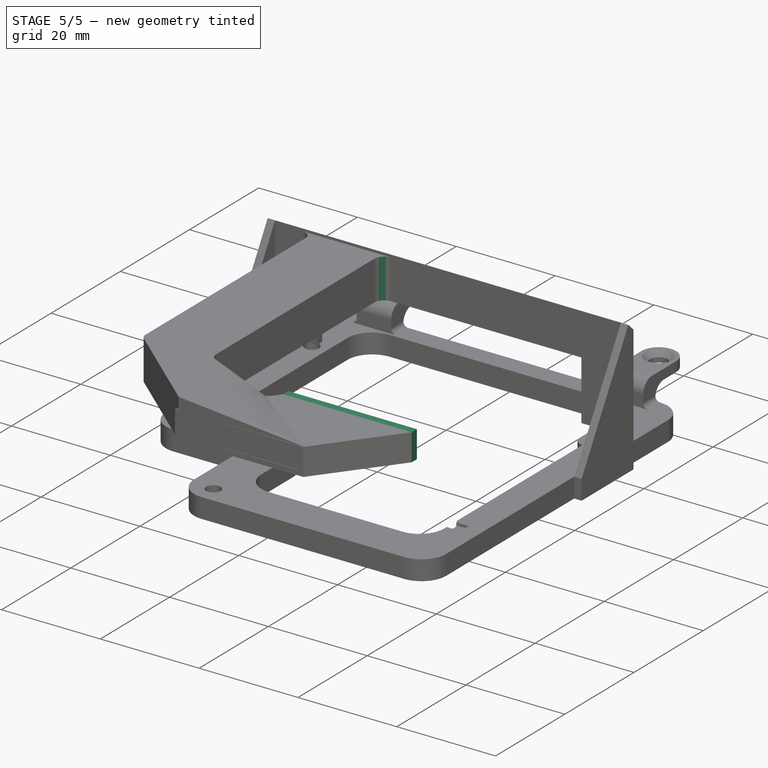
[diagram: stage 5 of 5 — iso view after this stage's code; geometry added in this stage tinted green]
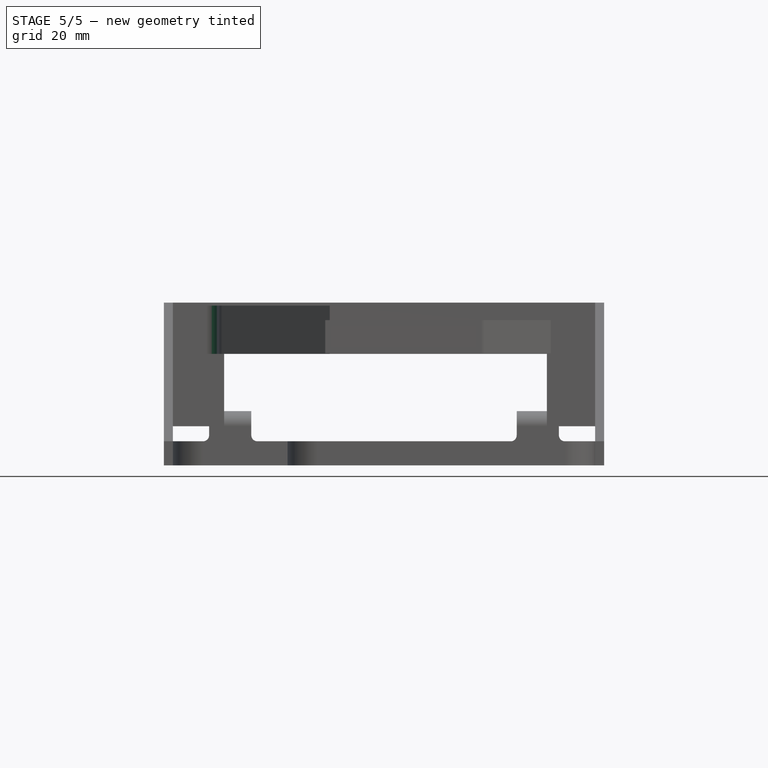
[diagram: stage 5 of 5 — front view after this stage's code; geometry added in this stage tinted green]
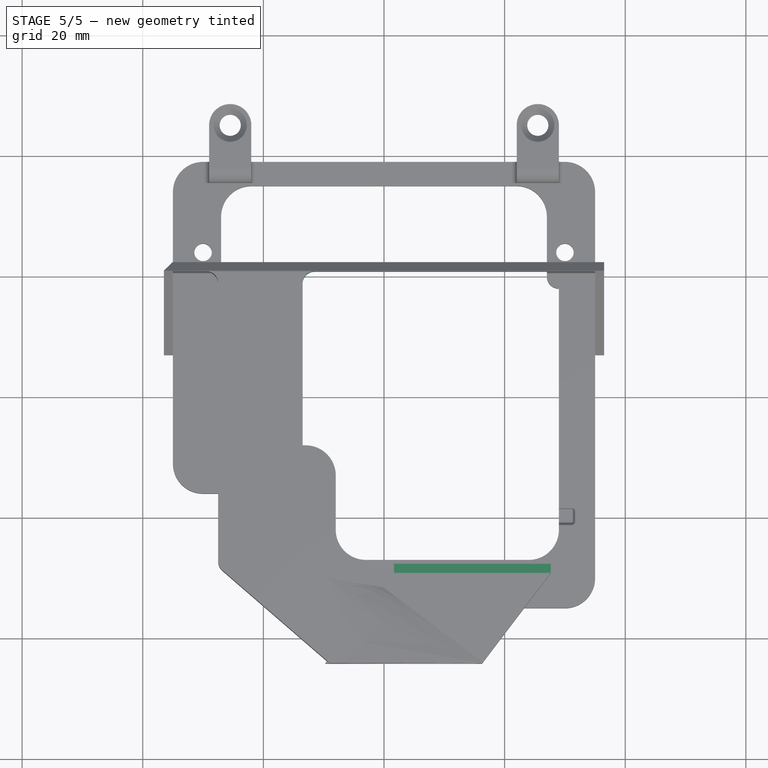
[diagram: stage 5 of 5 — top view after this stage's code; geometry added in this stage tinted green]
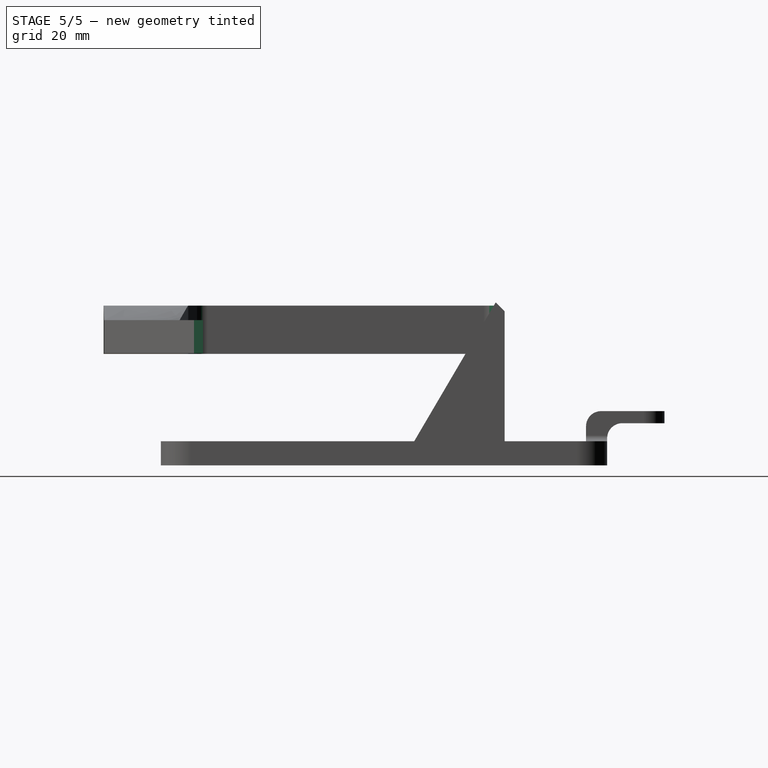
[diagram: stage 5 of 5 — right view after this stage's code; geometry added in this stage tinted green]
FEATURE [PartDesign::Pad] Pad006
  BaseFeature = -> Pocket003
  Direction = (0,1,-5e-16)
  Length = 1.5
  Length2 = 10
  Profile = -> Pocket003 [Face140]
  Type = 0
FEATURE [PartDesign::Chamfer] Chamfer002
  Angle = 45
  Base = -> Pad006 [Edge379,Edge380,Edge381,Edge382]
  BaseFeature = -> Pad006
  ChamferType = 0
  FlipDirection = false
  Size = 0.7
  Size2 = 1
  SupportTransform = false
  UseAllEdges = false
FEATURE [PartDesign::Fillet] Fillet005
  Base = -> Chamfer002 [Edge121,Edge99,Edge107,Edge85,Edge59,Edge38]
  BaseFeature = -> Chamfer002
  Radius = 2
  SupportTransform = false
  UseAllEdges = false
FEATURE [Sketcher::SketchObject] Sketch014
  ExternalGeometry = -> [Fillet005]
  FullyConstrained = true
  MapMode = 5
  Placement = pos=(1e-16,22,-6.5e-15) rot=(0,0.707107,0.707107;3.14159rad)
  Support = -> [Fillet005]
  sketch-geometry (16):
    g0: LineSegment StartX=14.5 StartY=18.5 StartZ=0 EndX=14.5 EndY=19.5 EndZ=0
    g1: LineSegment StartX=14.5 StartY=19.5 StartZ=0 EndX=20 EndY=19.5 EndZ=0
    g2: LineSegment StartX=20 StartY=19.5 StartZ=0 EndX=20 EndY=22 EndZ=0
    g3: LineSegment StartX=20 StartY=22 StartZ=0 EndX=14.5 EndY=22 EndZ=0
    g4: LineSegment StartX=14.5 StartY=22 StartZ=0 EndX=14.5 EndY=23 EndZ=0
    g5: LineSegment StartX=14.5 StartY=23 StartZ=0 EndX=20 EndY=23 EndZ=0
    g6: LineSegment StartX=20 StartY=23 StartZ=0 EndX=20 EndY=25.5 EndZ=0
    g7: LineSegment StartX=20 StartY=25.5 StartZ=0 EndX=21 EndY=25.5 EndZ=0
    g8: LineSegment StartX=21 StartY=25.5 StartZ=0 EndX=21 EndY=23 EndZ=0
    g9: LineSegment StartX=21 StartY=23 StartZ=0 EndX=26.5 EndY=23 EndZ=0
    g10: LineSegment StartX=26.5 StartY=23 StartZ=0 EndX=26.5 EndY=22 EndZ=0
    g11: LineSegment StartX=26.5 StartY=22 StartZ=0 EndX=21 EndY=22 EndZ=0
    g12: LineSegment StartX=21 StartY=22 StartZ=0 EndX=21 EndY=19.5 EndZ=0
    g13: LineSegment StartX=21 StartY=19.5 StartZ=0 EndX=26.5 EndY=19.5 EndZ=0
    g14: LineSegment StartX=26.5 StartY=19.5 StartZ=0 EndX=26.5 EndY=18.5 EndZ=0
    g15: LineSegment StartX=26.5 StartY=18.5 StartZ=0 EndX=14.5 EndY=18.5 EndZ=0
  constraints (44):
    c: Coincident(g-6,g0)
    c: Coincident(g0,g-7)
    c: Coincident(g0,g1)
    c: PointOnObject(g1,g-7)
    c: Coincident(g1,g2)
    c: Vertical(g2)
    c: Coincident(g2,g3)
    c: PointOnObject(g3,g-3)
    c: Horizontal(g3)
    c: Coincident(g3,g4)
    c: PointOnObject(g4,g-3)
    c: Coincident(g4,g5)
    c: Horizontal(g5)
    c: Coincident(g5,g6)
    c: PointOnObject(g6,g-4)
    c: Vertical(g6)
    c: Coincident(g6,g7)
    c: PointOnObject(g7,g-4)
    c: Coincident(g7,g8)
    c: Vertical(g8)
    c: Coincident(g8,g9)
    c: PointOnObject(g9,g-5)
    c: Horizontal(g9)
    c: Coincident(g9,g10)
    c: PointOnObject(g10,g-5)
    c: Coincident(g10,g11)
    c: Horizontal(g11)
    c: Coincident(g11,g12)
    c: PointOnObject(g12,g-7)
    c: Vertical(g12)
    c: Coincident(g12,g13)
    c: Coincident(g13,g-7)
    c: Coincident(g13,g14)
    c: Coincident(g14,g-6)
    c: Coincident(g14,g15)
    c: Coincident(g15,g0)
    c: Equal(g4,g7)
    c: Equal(g7,g10)
    c: DistanceX(g7,g7) = 1
    c: Equal(g13,g1)
    c: Equal(g8,g6)
    c: Equal(g9,g5)
    c: DistanceX(g1,g12) = 1
    c: Equal(g12,g8)
FEATURE [PartDesign::Pad] Pad007
  BaseFeature = -> Fillet005
  Direction = (0,1,-2e-16)
  Length = 10
  Length2 = 10
  Profile = -> Sketch014
  ReferenceAxis = -> Sketch014 [N_Axis]
  Refine = true
  Type = 3
  UpToFace = -> Fillet005 [Face53]
FEATURE [PartDesign::Body] Body
  Group = -> [Sketch,Pad,Fillet,Fillet001,Sketch001,Pad001,Sketch002,Pocket,Fillet002,Fillet003,Chamfer,Sketch003,Pad002,Sketch004,Pad003,Sketch005,Pad004,Sketch006,Pocket001,Chamfer001,Sketch007,Pocket002,Fillet004,Sketch008,DatumPlane,Sketch009,DatumPlane001,Sketch010,DatumPlane002,Sketch011,DatumPlane003,Sketch012,AdditiveLoft,Pad005,Sketch013,Pocket003,Pad006,Chamfer002,Fillet005,Sketch014,Pad007]
  Origin = -> Origin
  Tip = -> Pad007
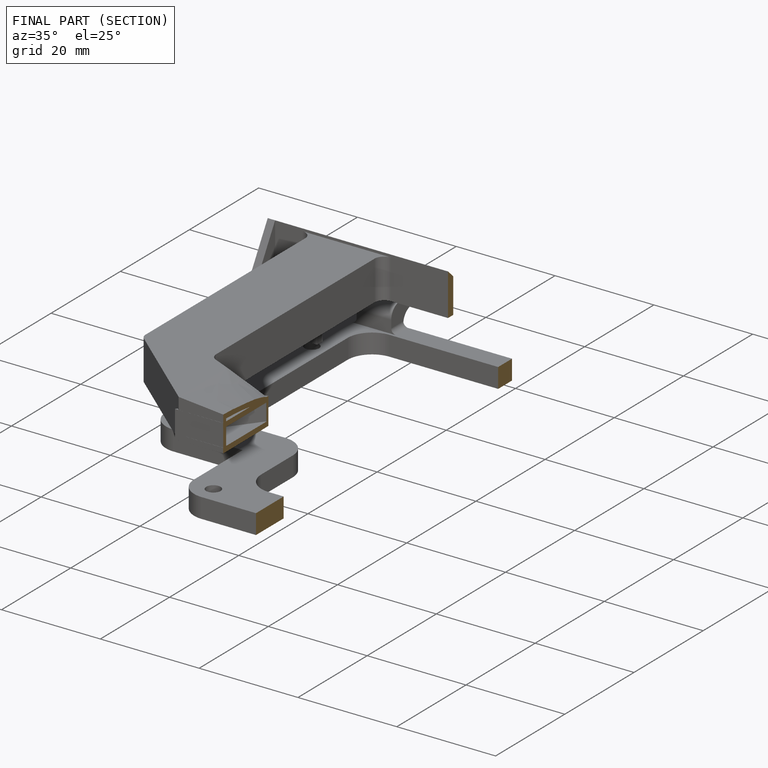
[diagram: finished part — half-section view (interior)]
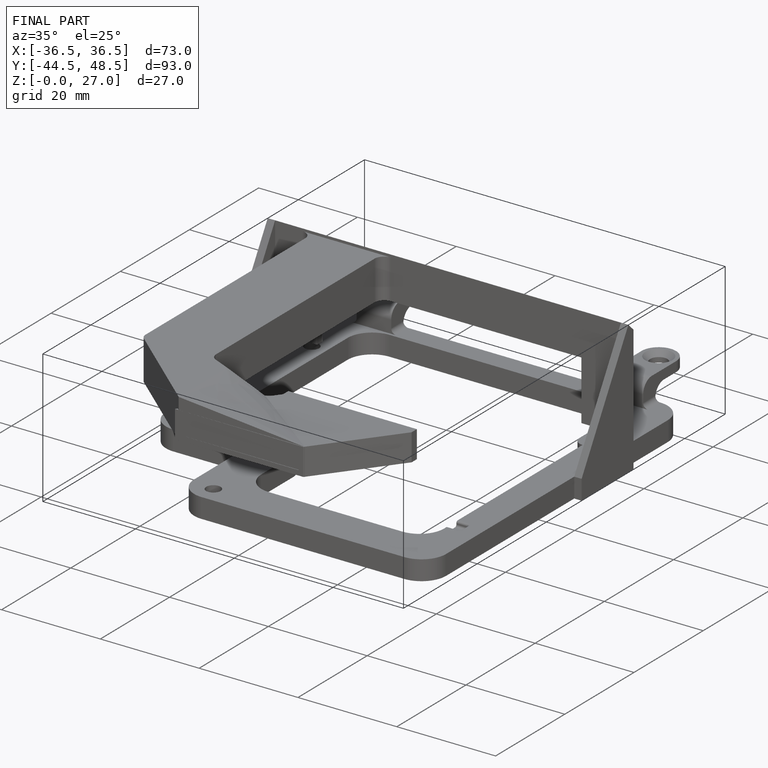
[diagram: finished part — iso view with bounding-box wireframe]
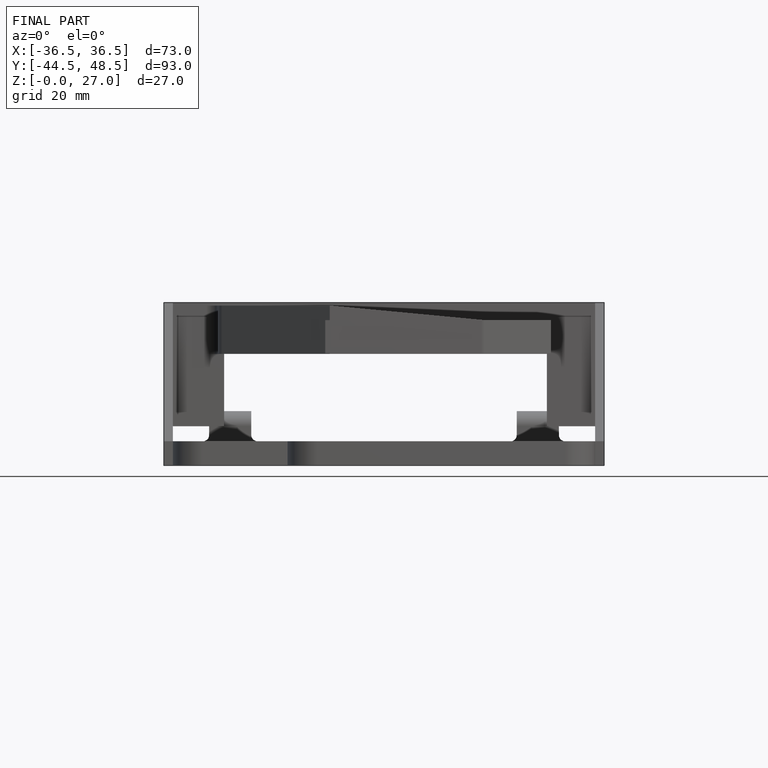
[diagram: finished part — front view with bounding-box wireframe]
